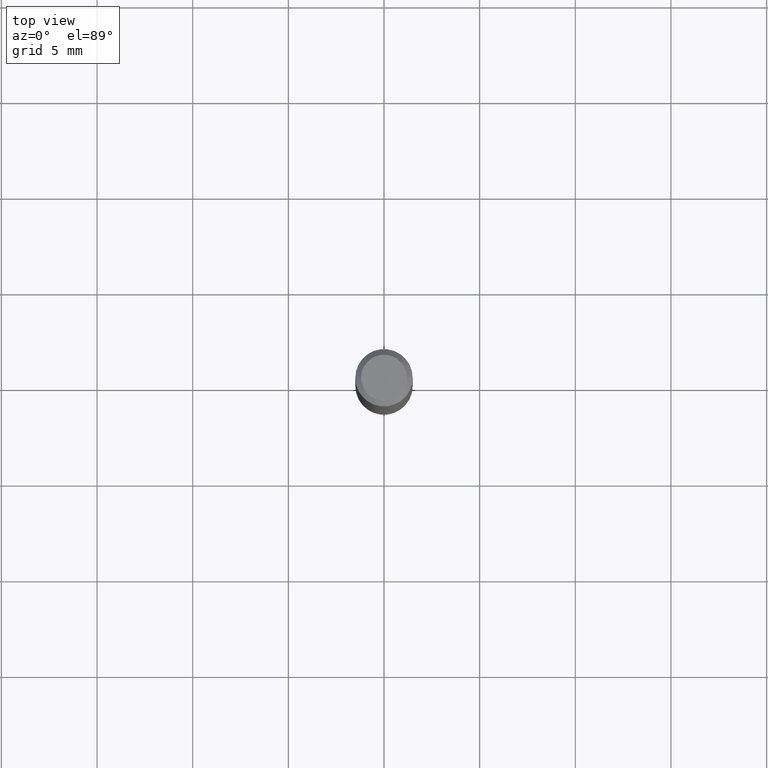
[diagram: clean part render]
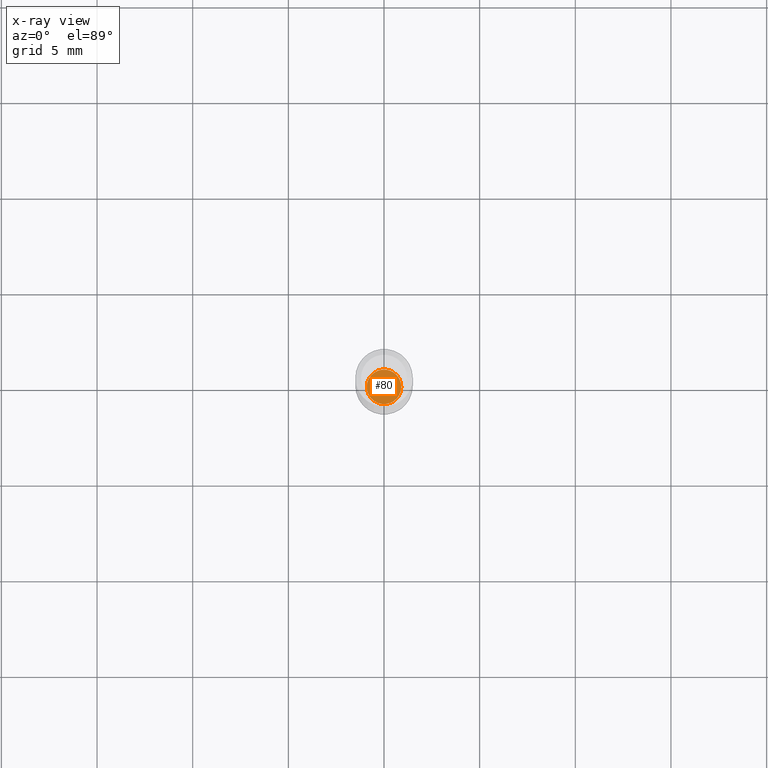
[diagram: x-ray — body ghosted, one internal face saturated and labeled with its STEP entity id]
A machine part, top view, then the same camera in x-ray: the body is ghosted and one INTERNAL B-rep face — a face not visible from any outside direction — is saturated and labeled: STEP entity #80.
In plain terms, the highlighted planar face has unit normal (-0, 0, 1).
Its self-contained STEP definition (entity closure, byte-faithful):
#31 = VERTEX_POINT ( 'NONE', #225 ) ;
#53 = DIRECTION ( 'NONE',  ( -2.445468806185136597E-29, 3.491481338843145583E-15, 1.000000000000000000 ) ) ;
#61 = EDGE_CURVE ( 'NONE', #31, #108, #68, .T. ) ;
#68 = CIRCLE ( 'NONE', #381, 0.03549999999999999684 ) ;
#80 = ADVANCED_FACE ( 'NONE', ( #127 ), #205, .F. ) ;
#93 = DIRECTION ( 'NONE',  ( 1.000000000000000000, -6.982962677686265133E-15, 0.000000000000000000 ) ) ;
#95 = DIRECTION ( 'NONE',  ( -2.438088387897960049E-29, 3.491481338843145188E-15, 1.000000000000000000 ) ) ;
#108 = VERTEX_POINT ( 'NONE', #385 ) ;
#127 = FACE_OUTER_BOUND ( 'NONE', #187, .T. ) ;
#132 = AXIS2_PLACEMENT_3D ( 'NONE', #394, #53, #93 ) ;
#181 = CIRCLE ( 'NONE', #132, 0.03549999999999999684 ) ;
#187 = EDGE_LOOP ( 'NONE', ( #365, #378 ) ) ;
#205 = PLANE ( 'NONE',  #415 ) ;
#225 = CARTESIAN_POINT ( 'NONE',  ( -0.03549999999999999684, -3.566534426994876177E-15, -1.094500000000000028 ) ) ;
#234 = CARTESIAN_POINT ( 'NONE',  ( 2.676565608369632355E-29, -3.821426325363822773E-15, -1.094500000000000028 ) ) ;
#266 = DIRECTION ( 'NONE',  ( 1.000000000000000000, -6.982962677686265133E-15, 0.000000000000000000 ) ) ;
#365 = ORIENTED_EDGE ( 'NONE', *, *, #390, .F. ) ;
#369 = DIRECTION ( 'NONE',  ( -2.445468806185136597E-29, 3.491481338843145583E-15, 1.000000000000000000 ) ) ;
#378 = ORIENTED_EDGE ( 'NONE', *, *, #61, .F. ) ;
#381 = AXIS2_PLACEMENT_3D ( 'NONE', #234, #369, #266 ) ;
#385 = CARTESIAN_POINT ( 'NONE',  ( 0.03549999999999999684, -4.069321500421685746E-15, -1.094500000000000028 ) ) ;
#390 = EDGE_CURVE ( 'NONE', #108, #31, #181, .T. ) ;
#394 = CARTESIAN_POINT ( 'NONE',  ( 2.676565608369632355E-29, -3.821426325363822773E-15, -1.094500000000000028 ) ) ;
#400 = DIRECTION ( 'NONE',  ( 1.000000000000000000, -6.982962677686265922E-15, 4.876176775795935793E-29 ) ) ;
#404 = CARTESIAN_POINT ( 'NONE',  ( -2.641543465264018300E-30, -8.032704676160352560E-15, -1.094500000000000028 ) ) ;
#415 = AXIS2_PLACEMENT_3D ( 'NONE', #404, #95, #400 ) ;